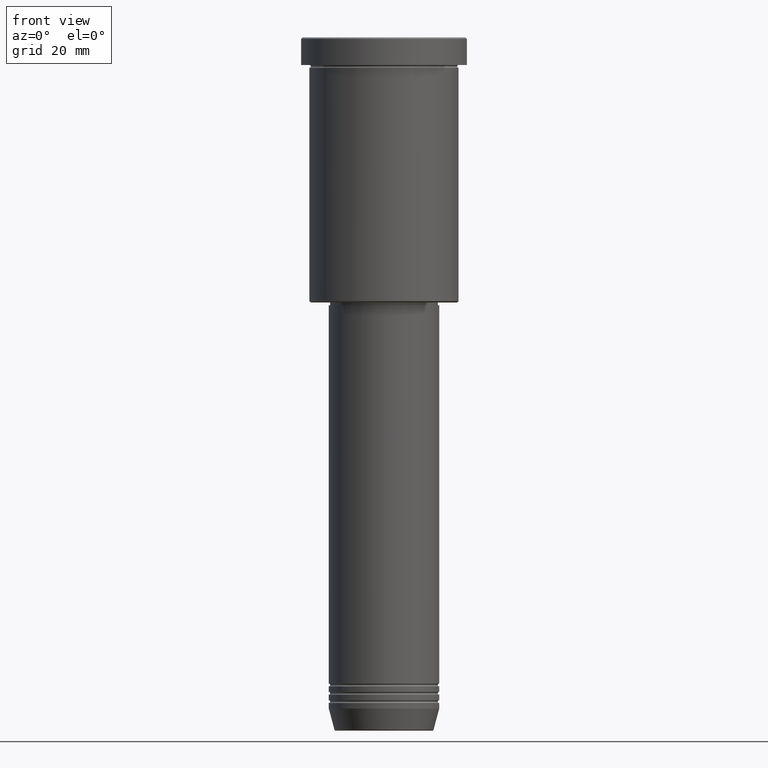
[diagram: clean part render]
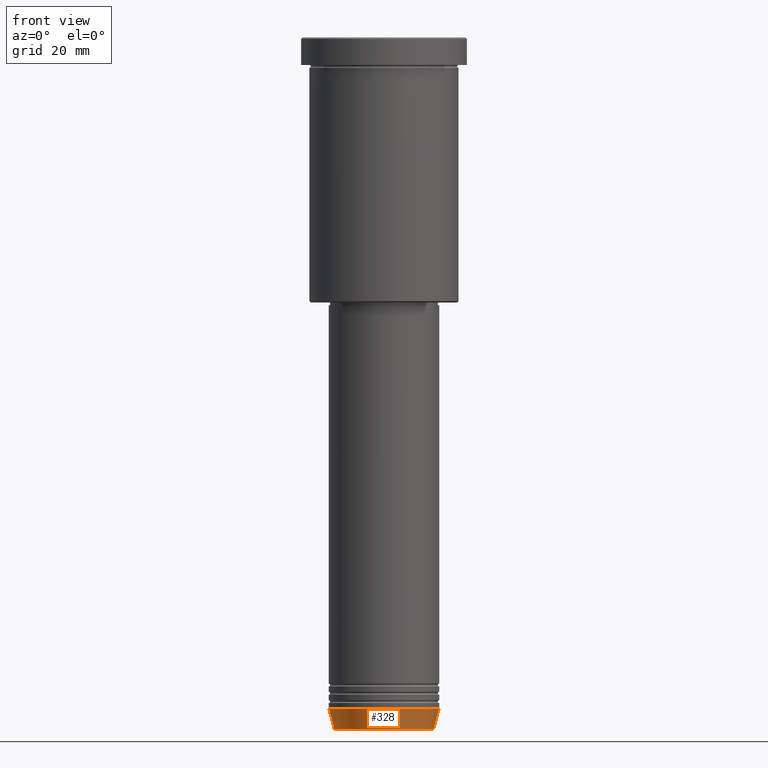
[diagram: same view with one face highlighted and labeled with its STEP entity id]
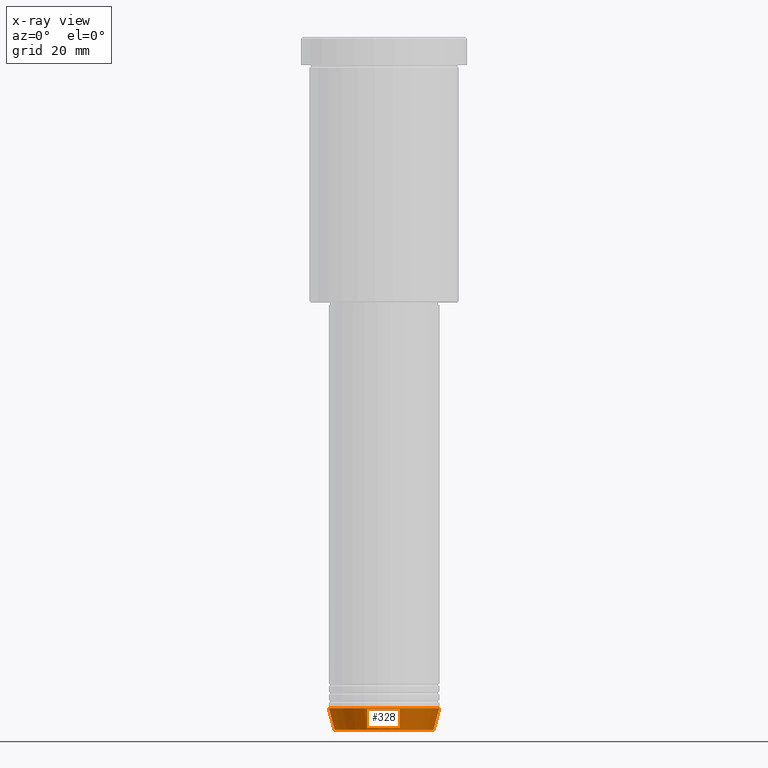
[diagram: x-ray of the same camera — body ghosted, the highlighted face saturated]
A machine part, front view. The second image highlights one B-rep face of the part: STEP entity #328.
The next image is the same camera in x-ray: the body ghosted, the highlighted face saturated — about 0% of this face is hidden behind the body in this view.
In plain terms, the highlighted conical surface has half-angle 15 deg.
Its self-contained STEP definition (entity closure, byte-faithful):
#1 = ORIENTED_EDGE ( 'NONE', *, *, #1176, .T. ) ;
#3 = DIRECTION ( 'NONE',  ( 0.2588190451025213501, 0.000000000000000000, 0.9659258262890680902 ) ) ;
#7 = CONICAL_SURFACE ( 'NONE', #595, 20.00000000000000000, 0.2617993877991500740 ) ;
#16 = CARTESIAN_POINT ( 'NONE',  ( 0.000000000000000000, 0.000000000000000000, -243.0000000000000284 ) ) ;
#86 = AXIS2_PLACEMENT_3D ( 'NONE', #16, #191, #1181 ) ;
#104 = CARTESIAN_POINT ( 'NONE',  ( 0.000000000000000000, 0.000000000000000000, -243.0000000000000284 ) ) ;
#130 = CIRCLE ( 'NONE', #972, 17.95570587970607690 ) ;
#158 = VERTEX_POINT ( 'NONE', #1078 ) ;
#168 = CARTESIAN_POINT ( 'NONE',  ( 17.95570587970607690, 0.000000000000000000, -250.6294095225512422 ) ) ;
#185 = EDGE_CURVE ( 'NONE', #329, #158, #423, .T. ) ;
#191 = DIRECTION ( 'NONE',  ( -0.000000000000000000, -0.000000000000000000, 1.000000000000000000 ) ) ;
#234 = VECTOR ( 'NONE', #3, 1000.000000000000000 ) ;
#289 = DIRECTION ( 'NONE',  ( -0.000000000000000000, -0.000000000000000000, 1.000000000000000000 ) ) ;
#291 = VERTEX_POINT ( 'NONE', #375 ) ;
#302 = ORIENTED_EDGE ( 'NONE', *, *, #185, .F. ) ;
#321 = EDGE_CURVE ( 'NONE', #158, #291, #514, .T. ) ;
#328 = ADVANCED_FACE ( 'NONE', ( #359 ), #7, .T. ) ;
#329 = VERTEX_POINT ( 'NONE', #649 ) ;
#339 = ORIENTED_EDGE ( 'NONE', *, *, #321, .F. ) ;
#357 = CARTESIAN_POINT ( 'NONE',  ( 20.00000000000000000, 0.000000000000000000, -243.0000000000000284 ) ) ;
#359 = FACE_OUTER_BOUND ( 'NONE', #538, .T. ) ;
#368 = LINE ( 'NONE', #357, #234 ) ;
#375 = CARTESIAN_POINT ( 'NONE',  ( 20.00000000000000000, 0.000000000000000000, -243.0000000000000284 ) ) ;
#380 = DIRECTION ( 'NONE',  ( 1.000000000000000000, 0.000000000000000000, 0.000000000000000000 ) ) ;
#423 = LINE ( 'NONE', #522, #673 ) ;
#514 = CIRCLE ( 'NONE', #86, 20.00000000000000000 ) ;
#522 = CARTESIAN_POINT ( 'NONE',  ( -20.00000000000000000, 2.449293598294706513E-15, -243.0000000000000284 ) ) ;
#538 = EDGE_LOOP ( 'NONE', ( #302, #1, #578, #339 ) ) ;
#566 = CARTESIAN_POINT ( 'NONE',  ( 0.000000000000000000, 0.000000000000000000, -250.6294095225512422 ) ) ;
#567 = EDGE_CURVE ( 'NONE', #949, #291, #368, .T. ) ;
#578 = ORIENTED_EDGE ( 'NONE', *, *, #567, .T. ) ;
#595 = AXIS2_PLACEMENT_3D ( 'NONE', #104, #289, #724 ) ;
#649 = CARTESIAN_POINT ( 'NONE',  ( -17.95570587970607690, 2.324116685748020977E-15, -250.6294095225512422 ) ) ;
#668 = DIRECTION ( 'NONE',  ( -0.000000000000000000, -0.000000000000000000, 1.000000000000000000 ) ) ;
#673 = VECTOR ( 'NONE', #894, 1000.000000000000000 ) ;
#724 = DIRECTION ( 'NONE',  ( 1.000000000000000000, 0.000000000000000000, 0.000000000000000000 ) ) ;
#894 = DIRECTION ( 'NONE',  ( -0.2588190451025213501, 3.169619151431772337E-17, 0.9659258262890680902 ) ) ;
#949 = VERTEX_POINT ( 'NONE', #168 ) ;
#972 = AXIS2_PLACEMENT_3D ( 'NONE', #566, #668, #380 ) ;
#1078 = CARTESIAN_POINT ( 'NONE',  ( -20.00000000000000000, 2.449293598294706513E-15, -243.0000000000000284 ) ) ;
#1176 = EDGE_CURVE ( 'NONE', #329, #949, #130, .T. ) ;
#1181 = DIRECTION ( 'NONE',  ( 1.000000000000000000, 0.000000000000000000, 0.000000000000000000 ) ) ;